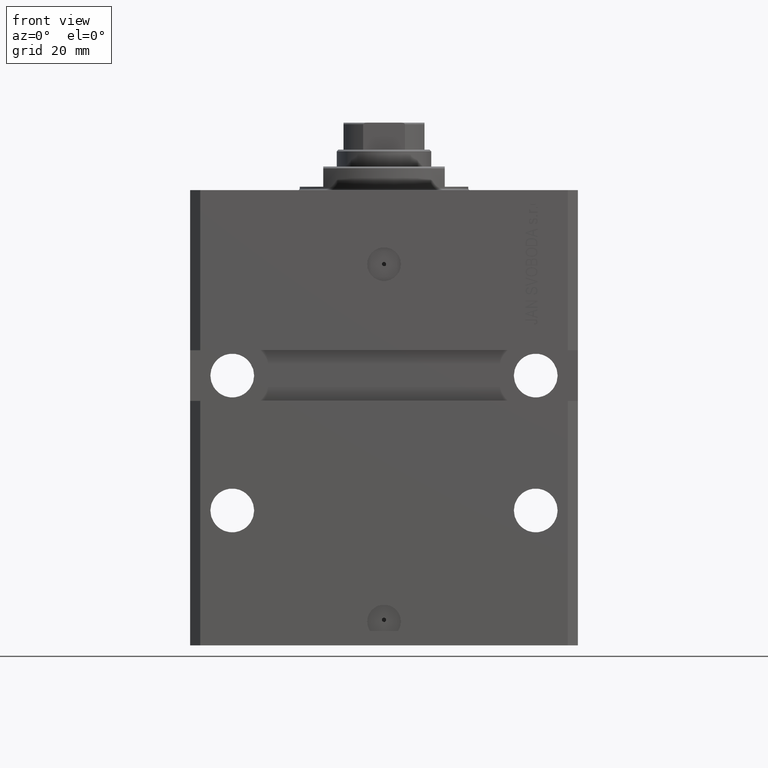
[diagram: clean part render]
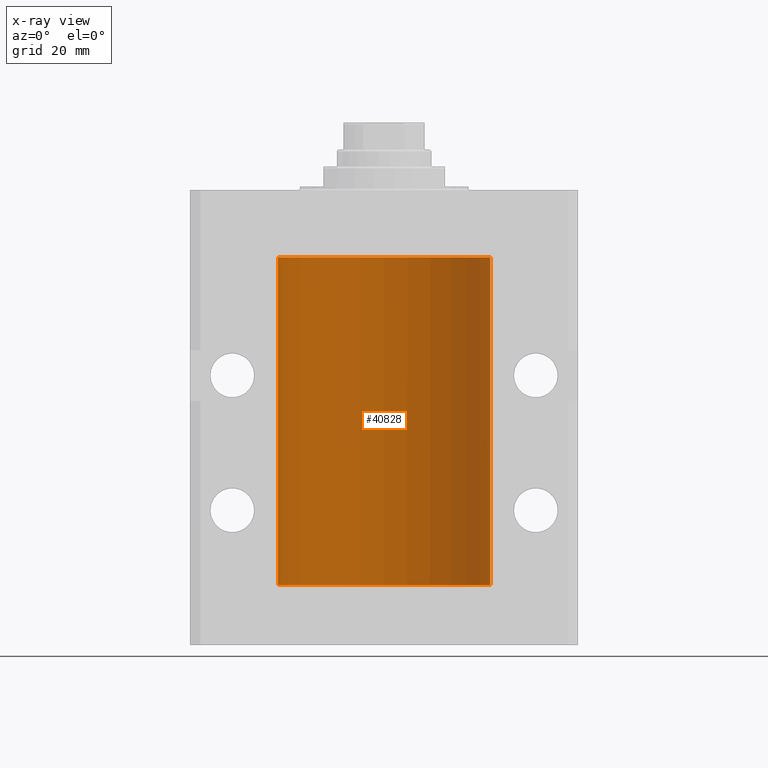
[diagram: x-ray — body ghosted, one internal face saturated and labeled with its STEP entity id]
A machine part, front view, then the same camera in x-ray: the body is ghosted and one INTERNAL B-rep face — a face not visible from any outside direction — is saturated and labeled: STEP entity #40828.
In plain terms, the highlighted cylindrical surface (partial cylindrical patch) has radius 31.5 mm, axis along (0, 0, 1).
Its self-contained STEP definition (entity closure, byte-faithful):
#2938 = EDGE_CURVE ( 'NONE', #37980, #20147, #6666, .T. ) ;
#3246 = DIRECTION ( 'NONE',  ( 1.000000000000000000, 0.000000000000000000, 0.000000000000000000 ) ) ;
#4020 = EDGE_CURVE ( 'NONE', #44942, #20147, #42315, .T. ) ;
#5884 = DIRECTION ( 'NONE',  ( 1.000000000000000000, 0.000000000000000000, 0.000000000000000000 ) ) ;
#6023 = CARTESIAN_POINT ( 'NONE',  ( -31.49526081842315151, 0.5587119163470772865, -29.32511513093050937 ) ) ;
#6209 = AXIS2_PLACEMENT_3D ( 'NONE', #26874, #22165, #3246 ) ;
#6464 = CARTESIAN_POINT ( 'NONE',  ( -31.50000000000000000, -2.862469004324082213E-15, -113.3750000000000000 ) ) ;
#6514 = CARTESIAN_POINT ( 'NONE',  ( -31.49528028230855270, 0.5573323339569594692, -28.67349008819320844 ) ) ;
#6666 = LINE ( 'NONE', #21848, #31347 ) ;
#6699 = CARTESIAN_POINT ( 'NONE',  ( -31.49966591610109390, 0.1636376958180598418, -113.3912618999583657 ) ) ;
#6983 = CYLINDRICAL_SURFACE ( 'NONE', #6209, 31.50000000000000000 ) ;
#7889 = ORIENTED_EDGE ( 'NONE', *, *, #48437, .F. ) ;
#7965 = CARTESIAN_POINT ( 'NONE',  ( -31.50000000000000000, -2.862469004324082213E-15, -113.3750000000000000 ) ) ;
#8951 = ORIENTED_EDGE ( 'NONE', *, *, #2938, .F. ) ;
#9464 = CARTESIAN_POINT ( 'NONE',  ( -31.49770767031180441, 0.3843648832734344878, -113.5004608125965717 ) ) ;
#9855 = CARTESIAN_POINT ( 'NONE',  ( 0.000000000000000000, 0.000000000000000000, -117.0999999999999943 ) ) ;
#10890 = VERTEX_POINT ( 'NONE', #33029 ) ;
#11043 = DIRECTION ( 'NONE',  ( 1.000000000000000000, 0.000000000000000000, 0.000000000000000000 ) ) ;
#11389 = CARTESIAN_POINT ( 'NONE',  ( -31.50000000000000000, 3.857637417314161900E-15, -117.0999999999999943 ) ) ;
#12015 = DIRECTION ( 'NONE',  ( 0.000000000000000000, 0.000000000000000000, 1.000000000000000000 ) ) ;
#12305 = ORIENTED_EDGE ( 'NONE', *, *, #35799, .F. ) ;
#13176 = VERTEX_POINT ( 'NONE', #42666 ) ;
#13970 = CARTESIAN_POINT ( 'NONE',  ( 31.50000000000000000, 0.000000000000000000, -117.0999999999999943 ) ) ;
#14576 = VERTEX_POINT ( 'NONE', #36102 ) ;
#15744 = CARTESIAN_POINT ( 'NONE',  ( 0.000000000000000000, 0.000000000000000000, -20.00000000000000355 ) ) ;
#16849 = ORIENTED_EDGE ( 'NONE', *, *, #45622, .T. ) ;
#16957 = CARTESIAN_POINT ( 'NONE',  ( 31.50000000000000000, 0.000000000000000000, -20.00000000000000355 ) ) ;
#17389 = CARTESIAN_POINT ( 'NONE',  ( -31.50000000000000000, 3.857637417314161900E-15, -117.0999999999999943 ) ) ;
#18432 = CARTESIAN_POINT ( 'NONE',  ( -31.49853548231893541, 0.3253851488062241559, -29.55855470525682094 ) ) ;
#20147 = VERTEX_POINT ( 'NONE', #45724 ) ;
#20240 = EDGE_LOOP ( 'NONE', ( #8951, #34391, #16849, #43429, #7889, #28959, #12305, #22232 ) ) ;
#21170 = CIRCLE ( 'NONE', #48948, 31.50000000000000000 ) ;
#21463 = DIRECTION ( 'NONE',  ( -0.000000000000000000, -0.000000000000000000, 1.000000000000000000 ) ) ;
#21528 = VECTOR ( 'NONE', #43788, 1000.000000000000000 ) ;
#21644 = CARTESIAN_POINT ( 'NONE',  ( -31.50000000000000000, 0.1631661150515248127, -114.6249999999998721 ) ) ;
#21691 = CARTESIAN_POINT ( 'NONE',  ( -31.49379784581975983, 0.6250577973157598333, -29.16284184848847971 ) ) ;
#21848 = CARTESIAN_POINT ( 'NONE',  ( -31.50000000000000000, 3.857637417314161900E-15, -117.0999999999999943 ) ) ;
#22165 = DIRECTION ( 'NONE',  ( -0.000000000000000000, -0.000000000000000000, 1.000000000000000000 ) ) ;
#22232 = ORIENTED_EDGE ( 'NONE', *, *, #4020, .T. ) ;
#22735 = EDGE_CURVE ( 'NONE', #10890, #37980, #23210, .T. ) ;
#23210 = CIRCLE ( 'NONE', #37490, 31.50000000000000000 ) ;
#23496 = EDGE_CURVE ( 'NONE', #13176, #14576, #41140, .T. ) ;
#24894 = CARTESIAN_POINT ( 'NONE',  ( -31.49526081842315151, 0.5587119163470788408, -114.3251151309305413 ) ) ;
#25046 = DIRECTION ( 'NONE',  ( 0.000000000000000000, 0.000000000000000000, 1.000000000000000000 ) ) ;
#25380 = CARTESIAN_POINT ( 'NONE',  ( -31.49853548231895672, 0.3253851488062226571, -114.5585547052568671 ) ) ;
#25668 = CARTESIAN_POINT ( 'NONE',  ( -31.50000000000006395, 3.480980906124966778E-13, -29.62500000000323297 ) ) ;
#25910 = LINE ( 'NONE', #13970, #33338 ) ;
#26001 = VECTOR ( 'NONE', #27313, 1000.000000000000000 ) ;
#26874 = CARTESIAN_POINT ( 'NONE',  ( 0.000000000000000000, 0.000000000000000000, -117.0999999999999943 ) ) ;
#27313 = DIRECTION ( 'NONE',  ( -0.000000000000000000, -0.000000000000000000, 1.000000000000000000 ) ) ;
#28383 = CARTESIAN_POINT ( 'NONE',  ( -31.49999999999999289, 0.08259258789479095864, -113.3749999999999858 ) ) ;
#28602 = LINE ( 'NONE', #17389, #21528 ) ;
#28630 = CARTESIAN_POINT ( 'NONE',  ( -31.49528028230855270, 0.5573323339569572488, -113.6734900881931907 ) ) ;
#28792 = CARTESIAN_POINT ( 'NONE',  ( -31.50000000000000000, 3.857637417314161900E-15, -117.0999999999999943 ) ) ;
#28959 = ORIENTED_EDGE ( 'NONE', *, *, #23496, .T. ) ;
#29108 = CARTESIAN_POINT ( 'NONE',  ( -31.49380014137585704, 0.6249421240571484404, -113.8367147919028923 ) ) ;
#29159 = CARTESIAN_POINT ( 'NONE',  ( -31.49770767031179730, 0.3843648832734374854, -28.50046081259655040 ) ) ;
#29399 = CARTESIAN_POINT ( 'NONE',  ( -31.49851563474691218, 0.3150284575672402942, -28.45401791159624239 ) ) ;
#31347 = VECTOR ( 'NONE', #45232, 1000.000000000000000 ) ;
#32885 = CARTESIAN_POINT ( 'NONE',  ( -31.50000000000000000, 6.759071642563815395E-15, -28.37500000000000355 ) ) ;
#33029 = CARTESIAN_POINT ( 'NONE',  ( 31.50000000000000000, 0.000000000000000000, -117.0999999999999943 ) ) ;
#33338 = VECTOR ( 'NONE', #21463, 1000.000000000000000 ) ;
#34336 = FACE_OUTER_BOUND ( 'NONE', #20240, .T. ) ;
#34391 = ORIENTED_EDGE ( 'NONE', *, *, #22735, .F. ) ;
#35799 = EDGE_CURVE ( 'NONE', #44942, #14576, #46461, .T. ) ;
#36102 = CARTESIAN_POINT ( 'NONE',  ( -31.50000000000006395, 3.480980906124966778E-13, -29.62500000000323297 ) ) ;
#36542 = EDGE_CURVE ( 'NONE', #44878, #39823, #21170, .T. ) ;
#36866 = CARTESIAN_POINT ( 'NONE',  ( -31.49966591610109390, 0.1636376958180632002, -28.39126189995839411 ) ) ;
#37490 = AXIS2_PLACEMENT_3D ( 'NONE', #9855, #25046, #5884 ) ;
#37974 = CARTESIAN_POINT ( 'NONE',  ( -31.50000000000006395, 3.480981129463732167E-13, -114.6250000000032401 ) ) ;
#37980 = VERTEX_POINT ( 'NONE', #28792 ) ;
#39823 = VERTEX_POINT ( 'NONE', #47807 ) ;
#40798 = CARTESIAN_POINT ( 'NONE',  ( -31.49851563474690508, 0.3150284575672371301, -113.4540179115962246 ) ) ;
#40828 = ADVANCED_FACE ( 'NONE', ( #34336 ), #6983, .F. ) ;
#41086 = CARTESIAN_POINT ( 'NONE',  ( -31.49380014137585704, 0.6249421240571523262, -28.83671479190291365 ) ) ;
#41140 = B_SPLINE_CURVE_WITH_KNOTS ( 'NONE', 3,
 ( #32885, #43864, #36866, #29399, #29159, #6514, #41086, #21691, #6023, #18432, #44587, #25668 ),
 .UNSPECIFIED., .F., .F.,
 ( 4, 2, 2, 2, 2, 4 ),
 ( 5.360009401240440187E-19, 0.0002442604562134703173, 0.0004885209124269400925, 0.0009770418248538795345, 0.001465562737280818977, 0.001954083649707758635 ),
 .UNSPECIFIED. ) ;
#42315 = B_SPLINE_CURVE_WITH_KNOTS ( 'NONE', 3,
 ( #6464, #28383, #6699, #40798, #9464, #28630, #29108, #44294, #24894, #25380, #21644, #37974 ),
 .UNSPECIFIED., .F., .F.,
 ( 4, 2, 2, 2, 2, 4 ),
 ( 3.062184955773984539E-18, 0.0002442604562134841409, 0.0004885209124269652460, 0.0009770418248538977491, 0.001465562737280830252, 0.001954083649707762538 ),
 .UNSPECIFIED. ) ;
#42666 = CARTESIAN_POINT ( 'NONE',  ( -31.50000000000000000, 6.759071642563815395E-15, -28.37500000000000355 ) ) ;
#43429 = ORIENTED_EDGE ( 'NONE', *, *, #36542, .T. ) ;
#43788 = DIRECTION ( 'NONE',  ( -0.000000000000000000, -0.000000000000000000, 1.000000000000000000 ) ) ;
#43864 = CARTESIAN_POINT ( 'NONE',  ( -31.49999999999999289, 0.08259258789479796692, -28.37500000000000711 ) ) ;
#44294 = CARTESIAN_POINT ( 'NONE',  ( -31.49379784581975272, 0.6250577973157633860, -114.1628418484884548 ) ) ;
#44587 = CARTESIAN_POINT ( 'NONE',  ( -31.50000000000000000, 0.1631661150515231473, -29.62499999999986144 ) ) ;
#44878 = VERTEX_POINT ( 'NONE', #16957 ) ;
#44942 = VERTEX_POINT ( 'NONE', #7965 ) ;
#45232 = DIRECTION ( 'NONE',  ( -0.000000000000000000, -0.000000000000000000, 1.000000000000000000 ) ) ;
#45622 = EDGE_CURVE ( 'NONE', #10890, #44878, #25910, .T. ) ;
#45724 = CARTESIAN_POINT ( 'NONE',  ( -31.50000000000006395, 3.480981129463732167E-13, -114.6250000000032401 ) ) ;
#46461 = LINE ( 'NONE', #11389, #26001 ) ;
#47807 = CARTESIAN_POINT ( 'NONE',  ( -31.50000000000000000, 3.857637417314161900E-15, -20.00000000000000355 ) ) ;
#48437 = EDGE_CURVE ( 'NONE', #13176, #39823, #28602, .T. ) ;
#48948 = AXIS2_PLACEMENT_3D ( 'NONE', #15744, #12015, #11043 ) ;